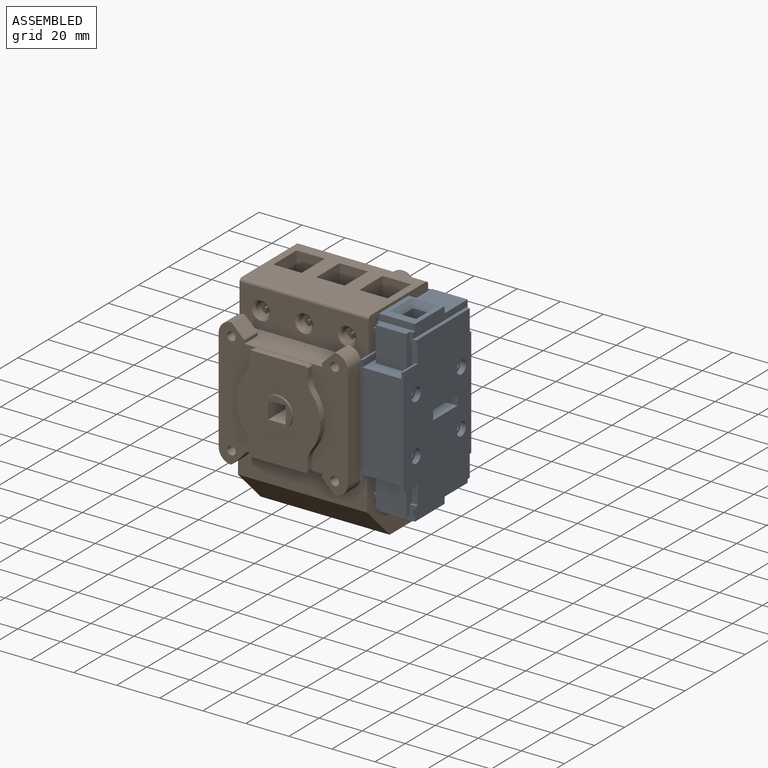
[diagram: assembled view]
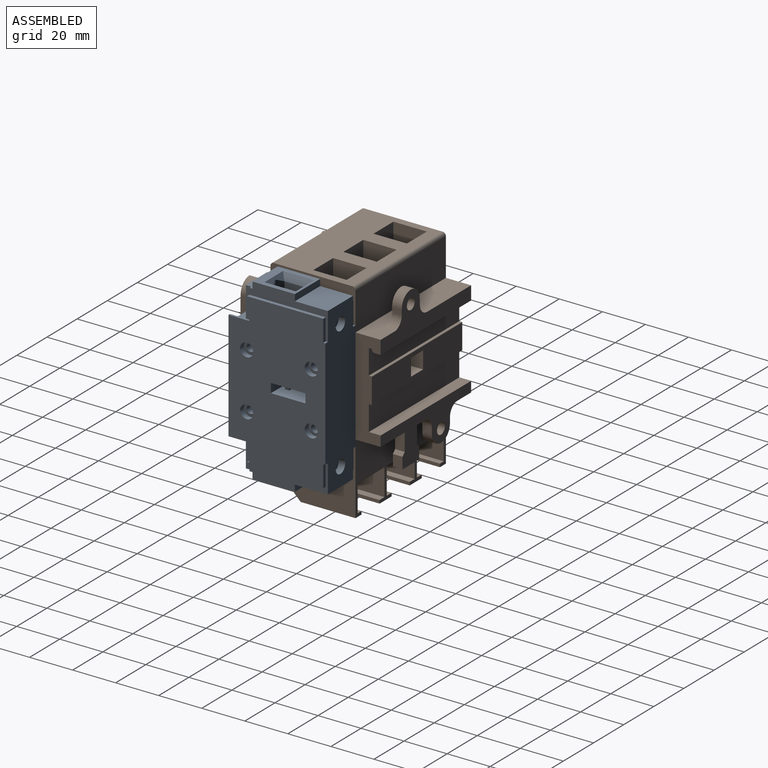
[diagram: assembled view, second angle]
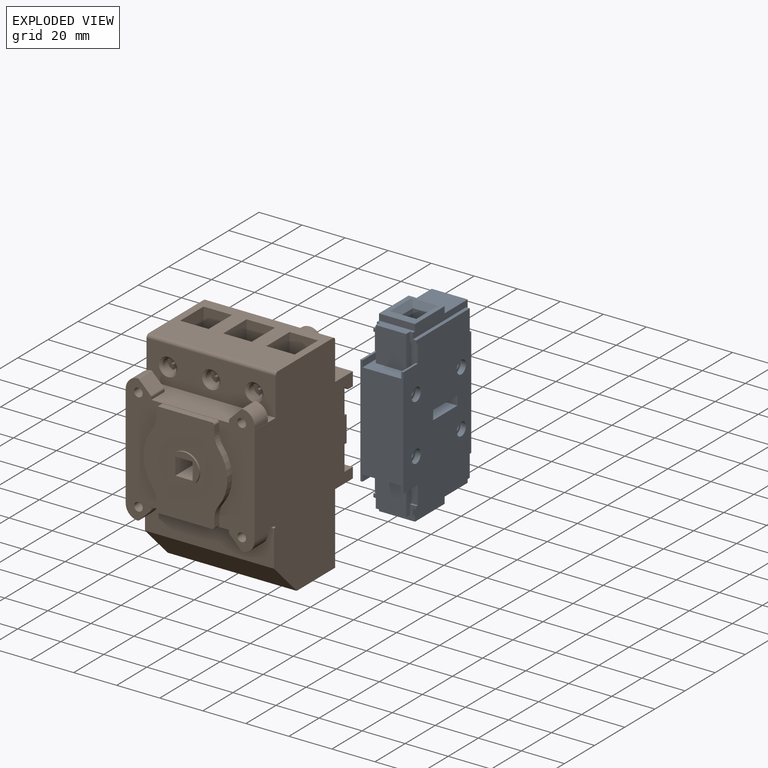
[diagram: exploded view]
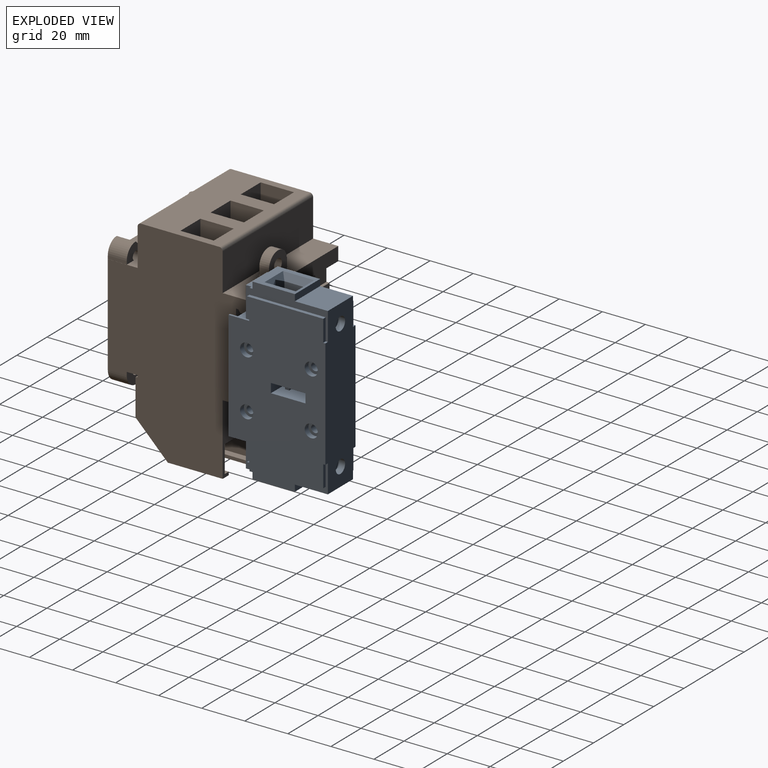
[diagram: exploded view, second angle]
ASSEMBLY  parts=2 mates=3
PART A: 132 faces, bbox 45x83x22.3 mm
  f0: cylinder r=1.5mm len=2.3mm, axis (0,0,-1), area 4.9mm2, adj f8,f129,f130,f131
  f1: cylinder r=1.5mm len=2.3mm, axis (0,0,-1), area 4.9mm2, adj f8,f129,f130,f131
  f2: plane 71.2x45mm, normal (0,0,-1), area 2807mm2, adj f3,f6,f13,f14,f20,f29,f30,f31
  f3: cylinder r=3.05mm len=6.1mm, axis (0,0,1), area 47.9mm2, adj f2,f4
  f4: plane 6.1x6.1mm, normal (0,0,-1), area 19mm2, adj f3,f7
  f5: plane 6.1x6.1mm, normal (0,0,-1), area 19mm2, adj f6,f9
  f6: cylinder r=3.05mm len=6.1mm, axis (0,0,1), area 47.9mm2, adj f2,f5
  f7: cylinder r=1.8mm len=17.5mm, axis (0,0,1), area 197.9mm2, adj f4,f8
  f8: plane 71.2x45mm, normal (0,0,1), area 2870.7mm2, adj f0,f1,f7,f9,f10,f15,f16,f18
  f9: cylinder r=1.8mm len=17.5mm, axis (0,0,1), area 197.9mm2, adj f5,f8
  f10: cylinder r=1.8mm len=17.5mm, axis (0,0,-1), area 197.9mm2, adj f8,f11
  f11: plane 6.1x6.1mm, normal (0,0,-1), area 19mm2, adj f10,f13
  f12: plane 6.1x6.1mm, normal (0,0,-1), area 19mm2, adj f14,f15
  f13: cylinder r=3.05mm len=6.1mm, axis (0,0,-1), area 47.9mm2, adj f2,f11
  f14: cylinder r=3.05mm len=6.1mm, axis (0,0,-1), area 47.9mm2, adj f2,f12
  f15: cylinder r=1.8mm len=17.5mm, axis (0,0,-1), area 197.9mm2, adj f8,f12
  f16: cylinder r=1.5mm len=3mm, axis (0,0,1), area 21.7mm2, adj f8,f17
  f17: plane 3x3mm, normal (0,0,1), area 7.1mm2, adj f16
  f18: plane 11.5x2.95mm, normal (-1,0,0), area 30.9mm2, adj f8,f19,f21,f22,f66,f67
  f19: plane 9.6x1mm, normal (0,-1,0), area 9.6mm2, adj f8,f18,f21,f33
  f20: plane 9.6x1mm, normal (0,-1,0), area 9.6mm2, adj f2,f31,f32,f33
  f21: plane 9.6x3mm, normal (0,0,-1), area 28.8mm2, adj f18,f19,f22,f33
  f22: plane 18x9.6mm, normal (0,-1,0), area 122mm2, adj f18,f21,f23,f24,f31,f32,f33,f66
  f23: plane 16x14.1mm, normal (-1,0,0), area 225.6mm2, adj f22,f24,f26,f66
  f24: plane 16x3.6mm, normal (0,0,-1), area 53.1mm2, adj f22,f23,f26,f29,f30,f31
  f25: plane 16.7x15.3mm, normal (0,-1,0), area 255.5mm2, adj f27,f28,f46,f61
  f26: plane 16.7x4mm, normal (0,-1,0), area 60mm2, adj f23,f24,f28,f29,f61,f62,f66,f69
  f27: plane 16.7x3mm, normal (1,0,0), area 50.1mm2, adj f25,f28,f61,f68
  f28: plane 36.4x16mm, normal (0,0,-1), area 174.8mm2, adj f25,f26,f27,f29,f46,f68,f69,f104
  f29: plane 4.5x2.95mm, normal (-1,0,0), area 8.5mm2, adj f2,f24,f26,f28,f30,f106
  f30: plane 2.95x1mm, normal (0,1,0), area 2.9mm2, adj f2,f24,f29,f31
  f31: plane 11.5x2.95mm, normal (-1,0,0), area 30.9mm2, adj f2,f20,f22,f24,f30,f32
  f32: plane 9.6x3mm, normal (0,0,1), area 28.8mm2, adj f20,f22,f31,f33
  f33: plane 51x20mm, normal (-1,0,0), area 912mm2, adj f2,f8,f19,f20,f21,f22,f32,f34
  f34: plane 9.6x1mm, normal (0,1,0), area 9.6mm2, adj f8,f33,f36,f96
  f35: plane 9.6x1mm, normal (0,1,0), area 9.6mm2, adj f2,f33,f38,f39
  f36: plane 9.6x3mm, normal (0,0,-1), area 28.8mm2, adj f33,f34,f37,f96
  f37: plane 18x9.6mm, normal (0,1,0), area 122mm2, adj f33,f36,f38,f39,f96,f97,f98,f99
  f38: plane 9.6x3mm, normal (0,0,1), area 28.8mm2, adj f33,f35,f37,f39
  f39: plane 11.5x2.95mm, normal (-1,0,0), area 30.9mm2, adj f2,f35,f37,f38,f40,f99
  f40: plane 2.95x1mm, normal (0,-1,0), area 2.9mm2, adj f2,f39,f41,f99
  f41: plane 4.5x2.95mm, normal (-1,0,0), area 8.5mm2, adj f2,f40,f42,f43,f92,f99
  f42: plane 35.4x1.65mm, normal (0,1,0), area 58.4mm2, adj f2,f41,f43,f44
  f43: plane 36.4x16mm, normal (0,0,-1), area 174.8mm2, adj f41,f42,f44,f45,f46,f89,f90,f91
  f44: plane 10.1x1.65mm, normal (1,0,0), area 16.7mm2, adj f2,f42,f43,f45
  f45: plane 1.65x1mm, normal (0,1,0), area 1.7mm2, adj f2,f43,f44,f46
  f46: plane 77x20mm, normal (1,0,0), area 1393.8mm2, adj f2,f8,f25,f28,f43,f45,f47,f61
  f47: cylinder r=3.1mm len=6.2mm, axis (-1,0,0), area 63.6mm2, adj f46,f48,f49,f50,f51,f52,f56,f57
  f48: plane 5.99x2.3mm, normal (1,0,0), area 8.3mm2, adj f47,f50,f57,f58,f59,f60
  f49: plane 5.99x2.3mm, normal (1,0,0), area 8.3mm2, adj f47,f52,f53,f54,f55,f56
  f50: plane 2.2x1mm, normal (0,0,-1), area 2.2mm2, adj f47,f48,f51,f60
  f51: plane 6.2x4mm, normal (1,0,0), area 13.6mm2, adj f47,f50,f52,f53,f54,f55,f56,f57
  f52: plane 2.2x1mm, normal (0,0,1), area 2.2mm2, adj f47,f49,f51,f53
  f53: plane 1.2x1mm, normal (0,-1,0), area 1.2mm2, adj f49,f51,f52,f54
  f54: plane 1.6x1mm, normal (0,0,1), area 1.6mm2, adj f49,f51,f53,f55
  f55: plane 1.2x1mm, normal (0,1,0), area 1.2mm2, adj f49,f51,f54,f56
  f56: plane 2.2x1mm, normal (0,0,1), area 2.2mm2, adj f47,f49,f51,f55
  f57: plane 2.2x1mm, normal (0,0,-1), area 2.2mm2, adj f47,f48,f51,f58
  f58: plane 1.2x1mm, normal (0,1,0), area 1.2mm2, adj f48,f51,f57,f59
  f59: plane 1.6x1mm, normal (0,0,-1), area 1.6mm2, adj f48,f51,f58,f60
  f60: plane 1.2x1mm, normal (0,-1,0), area 1.2mm2, adj f48,f50,f51,f59
  f61: plane 36.4x16mm, normal (0,0,1), area 174.8mm2, adj f25,f26,f27,f46,f62,f63,f64,f65
  f62: plane 4.5x2.95mm, normal (-1,0,0), area 8.5mm2, adj f8,f26,f61,f63,f66,f67
  f63: plane 35.4x1.65mm, normal (0,-1,0), area 58.4mm2, adj f8,f61,f62,f64
  f64: plane 10.1x1.65mm, normal (1,0,0), area 16.7mm2, adj f8,f61,f63,f65
  f65: plane 1.65x1mm, normal (0,-1,0), area 1.7mm2, adj f8,f46,f61,f64
  f66: plane 16x3.6mm, normal (0,0,1), area 53.1mm2, adj f18,f22,f23,f26,f62,f67
  f67: plane 2.95x1mm, normal (0,1,0), area 2.9mm2, adj f8,f18,f62,f66
  f68: plane 19.7x16.7mm, normal (0,-1,0), area 150.6mm2, adj f27,f28,f61,f69,f70,f76,f77,f78
  f69: plane 16.7x3mm, normal (-1,0,0), area 50.1mm2, adj f26,f28,f61,f68
  f70: plane 12.3x3mm, normal (-0.83,-0.55,0), area 37.1mm2, adj f68,f71,f76,f78
  f71: plane 16.6x8.3mm, normal (-1,0,0), area 137.8mm2, adj f70,f72,f75,f79
  f72: plane 16.6x10.5mm, normal (0,0,1), area 174.3mm2, adj f71,f73,f78,f79
  f73: plane 80.75x4.15mm, normal (0.96,0,0.29), area 341.9mm2, adj f72,f74,f77,f80,f82,f84
  f74: plane 80.75x4.15mm, normal (0.96,0,-0.29), area 341.9mm2, adj f73,f75,f77,f80,f84,f86
  f75: plane 16.6x10.5mm, normal (0,0,-1), area 174.3mm2, adj f71,f74,f76,f79
  f76: plane 14.5x3mm, normal (0,-0.55,-0.83), area 45.1mm2, adj f68,f70,f75,f77
  f77: plane 12.3x3mm, normal (0.83,-0.55,0), area 27.8mm2, adj f68,f73,f74,f76,f78
  f78: plane 14.5x3mm, normal (0,-0.55,0.83), area 45.1mm2, adj f68,f70,f72,f77
  f79: plane 10.5x8.3mm, normal (0,-1,0), area 87.1mm2, adj f71,f72,f75,f80
  f80: plane 43.8x8.3mm, normal (-1,0,0), area 363.5mm2, adj f73,f74,f79,f81
  f81: plane 10.5x8.3mm, normal (0,1,0), area 87.1mm2, adj f80,f82,f86,f87
  f82: plane 16.6x10.5mm, normal (0,0,1), area 174.3mm2, adj f73,f81,f83,f87
  f83: plane 14.5x3mm, normal (0,0.55,0.83), area 45.1mm2, adj f82,f84,f88,f89
  f84: plane 12.3x3mm, normal (0.83,0.55,0), area 27.8mm2, adj f73,f74,f83,f85,f89
  f85: plane 14.5x3mm, normal (0,0.55,-0.83), area 45.1mm2, adj f84,f86,f88,f89
  f86: plane 16.6x10.5mm, normal (0,0,-1), area 174.3mm2, adj f74,f81,f85,f87
  f87: plane 16.6x8.3mm, normal (-1,0,0), area 137.8mm2, adj f81,f82,f86,f88
  f88: plane 12.3x3mm, normal (-0.83,0.55,0), area 37.1mm2, adj f83,f85,f87,f89
  f89: plane 19.7x16.7mm, normal (0,1,0), area 150.6mm2, adj f43,f83,f84,f85,f88,f90,f93,f103
  f90: plane 16.7x3mm, normal (1,0,0), area 50.1mm2, adj f43,f89,f91,f93
  f91: plane 16.7x15.3mm, normal (0,1,0), area 255.5mm2, adj f43,f46,f90,f93
  f92: plane 16.7x4mm, normal (0,1,0), area 60mm2, adj f41,f43,f93,f94,f97,f98,f99,f103
  f93: plane 36.4x16mm, normal (0,0,1), area 174.8mm2, adj f46,f89,f90,f91,f92,f94,f100,f101
  f94: plane 4.5x2.95mm, normal (-1,0,0), area 8.5mm2, adj f8,f92,f93,f95,f97,f100
  f95: plane 2.95x1mm, normal (0,-1,0), area 2.9mm2, adj f8,f94,f96,f97
  f96: plane 11.5x2.95mm, normal (-1,0,0), area 30.9mm2, adj f8,f34,f36,f37,f95,f97
  f97: plane 16x3.6mm, normal (0,0,1), area 53.1mm2, adj f37,f92,f94,f95,f96,f98
  f98: plane 16x14.1mm, normal (-1,0,0), area 225.6mm2, adj f37,f92,f97,f99
  f99: plane 16x3.6mm, normal (0,0,-1), area 53.1mm2, adj f37,f39,f40,f41,f92,f98
  f100: plane 35.4x1.65mm, normal (0,1,0), area 58.4mm2, adj f8,f93,f94,f101
  f101: plane 10.1x1.65mm, normal (1,0,0), area 16.7mm2, adj f8,f93,f100,f102
  f102: plane 1.65x1mm, normal (0,1,0), area 1.7mm2, adj f8,f46,f93,f101
  f103: plane 16.7x3mm, normal (-1,0,0), area 50.1mm2, adj f43,f89,f92,f93
  f104: plane 1.65x1mm, normal (0,-1,0), area 1.7mm2, adj f2,f28,f46,f105
  f105: plane 10.1x1.65mm, normal (1,0,0), area 16.7mm2, adj f2,f28,f104,f106
  f106: plane 35.4x1.65mm, normal (0,-1,0), area 58.4mm2, adj f2,f28,f29,f105
  f107: cylinder r=3.1mm len=6.2mm, axis (1,0,0), area 63.6mm2, adj f46,f108,f109,f110,f114,f115,f119,f120
  f108: plane 5.99x2.3mm, normal (1,0,0), area 8.3mm2, adj f107,f110,f111,f112,f113,f114
  f109: plane 5.99x2.3mm, normal (1,0,0), area 8.3mm2, adj f107,f115,f116,f117,f118,f119
  f110: plane 2.2x1mm, normal (0,0,-1), area 2.2mm2, adj f107,f108,f111,f120
  f111: plane 1.2x1mm, normal (0,1,0), area 1.2mm2, adj f108,f110,f112,f120
  f112: plane 1.6x1mm, normal (0,0,-1), area 1.6mm2, adj f108,f111,f113,f120
  f113: plane 1.2x1mm, normal (0,-1,0), area 1.2mm2, adj f108,f112,f114,f120
  f114: plane 2.2x1mm, normal (0,0,-1), area 2.2mm2, adj f107,f108,f113,f120
  f115: plane 2.2x1mm, normal (0,0,1), area 2.2mm2, adj f107,f109,f116,f120
  f116: plane 1.2x1mm, normal (0,-1,0), area 1.2mm2, adj f109,f115,f117,f120
  f117: plane 1.6x1mm, normal (0,0,1), area 1.6mm2, adj f109,f116,f118,f120
  f118: plane 1.2x1mm, normal (0,1,0), area 1.2mm2, adj f109,f117,f119,f120
  f119: plane 2.2x1mm, normal (0,0,1), area 2.2mm2, adj f107,f109,f118,f120
  f120: plane 6.2x4mm, normal (1,0,0), area 13.6mm2, adj f107,f110,f111,f112,f113,f114,f115,f116
  f121: plane 20x4.3mm, normal (-1,0,0), area 86mm2, adj f2,f8,f122,f124
  f122: plane 20x16.1mm, normal (0,-1,0), area 306.2mm2, adj f2,f8,f121,f123,f125,f126,f127,f128
  f123: plane 20x4.3mm, normal (1,0,0), area 86mm2, adj f2,f8,f122,f124
  f124: plane 20x16.1mm, normal (0,1,0), area 306.2mm2, adj f2,f8,f121,f123,f125,f126,f127,f128
  f125: plane 4.3x2mm, normal (0,0,1), area 8.6mm2, adj f122,f124,f126,f128
  f126: plane 7.9x4.3mm, normal (-1,0,0), area 34mm2, adj f122,f124,f125,f127
  f127: plane 4.3x2mm, normal (0,0,-1), area 8.6mm2, adj f122,f124,f126,f128
  f128: plane 7.9x4.3mm, normal (1,0,0), area 34mm2, adj f122,f124,f125,f127
  f129: plane 2.3x2.28mm, normal (0,-1,0), area 5.2mm2, adj f0,f1,f8,f130
  f130: plane 3x1.95mm, normal (0,0,1), area 5.4mm2, adj f0,f1,f129,f131
  f131: plane 2.3x2.28mm, normal (0,1,0), area 5.2mm2, adj f0,f1,f8,f130
PART B: 228 faces, bbox 97x69.2x60 mm
  f0: plane 60x11.6mm, normal (0,-1,0), area 632mm2, adj f157,f158,f188,f203,f224,f225,f226,f227
  f1: cylinder r=0.4mm len=2.5mm, axis (0,1,0), area 1.6mm2, adj f2,f33,f34,f35
  f2: plane 2.5x0.54mm, normal (1,0,0), area 1.3mm2, adj f1,f3,f33,f35
  f3: cylinder r=35mm len=2.5mm, axis (0,1,0), area 3.5mm2, adj f2,f4,f33,f35
  f4: plane 2.5x0.54mm, normal (-1,0,0), area 1.3mm2, adj f3,f5,f33,f35
  f5: cylinder r=0.4mm len=2.5mm, axis (0,1,0), area 1.6mm2, adj f4,f32,f33,f35
  f6: cylinder r=0.4mm len=2.5mm, axis (0,1,0), area 1.6mm2, adj f7,f35,f36,f37
  f7: plane 2.5x0.54mm, normal (1,0,0), area 1.3mm2, adj f6,f8,f35,f37
  f8: cylinder r=35mm len=2.5mm, axis (0,1,0), area 3.5mm2, adj f7,f9,f35,f37
  f9: plane 2.5x0.54mm, normal (-1,0,0), area 1.3mm2, adj f8,f10,f35,f37
  f10: cylinder r=0.4mm len=2.5mm, axis (0,1,0), area 1.6mm2, adj f9,f31,f35,f37
  f11: cylinder r=0.4mm len=2.5mm, axis (0,1,0), area 1.6mm2, adj f12,f40,f41,f42
  f12: plane 2.5x0.54mm, normal (1,0,0), area 1.3mm2, adj f11,f13,f40,f42
  f13: cylinder r=35mm len=2.5mm, axis (0,-1,0), area 3.5mm2, adj f12,f14,f40,f42
  f14: plane 2.5x0.54mm, normal (-1,0,0), area 1.3mm2, adj f13,f15,f40,f42
  f15: cylinder r=0.4mm len=2.5mm, axis (0,1,0), area 1.6mm2, adj f14,f39,f40,f42
  f16: cylinder r=0.4mm len=2.5mm, axis (0,1,0), area 1.6mm2, adj f17,f42,f43,f44
  f17: plane 2.5x0.54mm, normal (1,0,0), area 1.3mm2, adj f16,f18,f42,f44
  f18: cylinder r=35mm len=2.5mm, axis (0,-1,0), area 3.5mm2, adj f17,f19,f42,f44
  f19: plane 2.5x0.54mm, normal (-1,0,0), area 1.3mm2, adj f18,f20,f42,f44
  f20: cylinder r=0.4mm len=2.5mm, axis (0,1,0), area 1.6mm2, adj f19,f38,f42,f44
  f21: cylinder r=0.4mm len=2.5mm, axis (0,1,0), area 1.6mm2, adj f22,f47,f48,f49
  f22: plane 2.5x0.54mm, normal (1,0,0), area 1.3mm2, adj f21,f23,f47,f49
  f23: cylinder r=35mm len=2.5mm, axis (0,-1,0), area 3.5mm2, adj f22,f24,f47,f49
  f24: plane 2.5x0.54mm, normal (-1,0,0), area 1.3mm2, adj f23,f25,f47,f49
  f25: cylinder r=0.4mm len=2.5mm, axis (0,1,0), area 1.6mm2, adj f24,f46,f47,f49
  f26: cylinder r=0.4mm len=2.5mm, axis (0,1,0), area 1.6mm2, adj f27,f49,f50,f51
  f27: plane 2.5x0.54mm, normal (1,0,0), area 1.3mm2, adj f26,f28,f49,f51
  f28: cylinder r=35mm len=2.5mm, axis (0,-1,0), area 3.5mm2, adj f27,f29,f49,f51
  f29: plane 2.5x0.54mm, normal (-1,0,0), area 1.3mm2, adj f28,f30,f49,f51
  f30: cylinder r=0.4mm len=2.5mm, axis (0,1,0), area 1.6mm2, adj f29,f45,f49,f51
  f31: plane 2.5x2.06mm, normal (0,0,-1), area 5.2mm2, adj f10,f35,f37,f55
  f32: plane 2.5x2.06mm, normal (0,0,1), area 5.2mm2, adj f5,f33,f35,f55
  f33: plane 6.32x2.5mm, normal (0,1,0), area 10.4mm2, adj f1,f2,f3,f4,f5,f32,f34,f55
  f34: plane 2.5x2.06mm, normal (0,0,1), area 5.2mm2, adj f1,f33,f35,f55
  f35: plane 6.5x3.39mm, normal (0,1,0), area 12.4mm2, adj f1,f2,f3,f4,f5,f6,f7,f8
  f36: plane 2.5x2.06mm, normal (0,0,-1), area 5.2mm2, adj f6,f35,f37,f55
  f37: plane 6.32x2.5mm, normal (0,1,0), area 10.4mm2, adj f6,f7,f8,f9,f10,f31,f36,f55
  f38: plane 2.5x2.06mm, normal (0,0,-1), area 5.2mm2, adj f20,f42,f44,f56
  f39: plane 2.5x2.06mm, normal (0,0,1), area 5.2mm2, adj f15,f40,f42,f56
  f40: plane 6.32x2.5mm, normal (0,1,0), area 10.4mm2, adj f11,f12,f13,f14,f15,f39,f41,f56
  f41: plane 2.5x2.06mm, normal (0,0,1), area 5.2mm2, adj f11,f40,f42,f56
  f42: plane 6.5x3.39mm, normal (0,1,0), area 12.4mm2, adj f11,f12,f13,f14,f15,f16,f17,f18
  f43: plane 2.5x2.06mm, normal (0,0,-1), area 5.2mm2, adj f16,f42,f44,f56
  f44: plane 6.32x2.5mm, normal (0,1,0), area 10.4mm2, adj f16,f17,f18,f19,f20,f38,f43,f56
  f45: plane 2.5x2.06mm, normal (0,0,-1), area 5.2mm2, adj f30,f49,f51,f57
  f46: plane 2.5x2.06mm, normal (0,0,1), area 5.2mm2, adj f25,f47,f49,f57
  f47: plane 6.32x2.5mm, normal (0,1,0), area 10.4mm2, adj f21,f22,f23,f24,f25,f46,f48,f57
  f48: plane 2.5x2.06mm, normal (0,0,1), area 5.2mm2, adj f21,f47,f49,f57
  f49: plane 6.5x3.39mm, normal (0,1,0), area 12.4mm2, adj f21,f22,f23,f24,f25,f26,f27,f28
  f50: plane 2.5x2.06mm, normal (0,0,-1), area 5.2mm2, adj f26,f49,f51,f57
  f51: plane 6.32x2.5mm, normal (0,1,0), area 10.4mm2, adj f26,f27,f28,f29,f30,f45,f50,f57
  f52: plane 15.5x13.2mm, normal (-1,0,0), area 204.6mm2, adj f58,f59,f60,f61
  f53: plane 15.5x13.2mm, normal (-1,0,0), area 204.6mm2, adj f63,f64,f65,f66
  f54: plane 15.5x13.2mm, normal (-1,0,0), area 204.6mm2, adj f68,f69,f70,f71
  f55: cylinder r=3.25mm len=6.5mm, axis (0,1,0), area 79mm2, adj f31,f32,f33,f34,f35,f36,f37,f78
  f56: cylinder r=3.25mm len=6.5mm, axis (0,1,0), area 79mm2, adj f38,f39,f40,f41,f42,f43,f44,f79
  f57: cylinder r=3.25mm len=6.5mm, axis (0,1,0), area 79mm2, adj f45,f46,f47,f48,f49,f50,f51,f80
  f58: plane 15.5x6mm, normal (0,0,-1), area 93mm2, adj f52,f59,f61,f86
  f59: plane 13.2x6mm, normal (0,-1,0), area 79.2mm2, adj f52,f58,f60,f86
  f60: plane 15.5x6mm, normal (0,0,1), area 93mm2, adj f52,f59,f61,f86
  f61: plane 13.2x6mm, normal (0,1,0), area 79.2mm2, adj f52,f58,f60,f86
  f62: plane 17.85x12.5mm, normal (0,-1,0), area 223.1mm2, adj f85,f86,f87,f88
  f63: plane 13.2x6mm, normal (0,-1,0), area 79.2mm2, adj f53,f64,f66,f92
  f64: plane 15.5x6mm, normal (0,0,1), area 93mm2, adj f53,f63,f65,f92
  f65: plane 13.2x6mm, normal (0,1,0), area 79.2mm2, adj f53,f64,f66,f92
  f66: plane 15.5x6mm, normal (0,0,-1), area 93mm2, adj f53,f63,f65,f92
  f67: plane 17.85x12.5mm, normal (0,-1,0), area 223.1mm2, adj f91,f92,f93,f94
  f68: plane 15.5x6mm, normal (0,0,1), area 93mm2, adj f54,f69,f71,f98
  f69: plane 13.2x6mm, normal (0,1,0), area 79.2mm2, adj f54,f68,f70,f98
  f70: plane 15.5x6mm, normal (0,0,-1), area 93mm2, adj f54,f69,f71,f98
  f71: plane 13.2x6mm, normal (0,-1,0), area 79.2mm2, adj f54,f68,f70,f98
  f72: plane 18.5x12.5mm, normal (0,-1,0), area 231.2mm2, adj f97,f98,f99,f100
  f73: plane 13.93x11.5mm, normal (0,1,0), area 103.1mm2, adj f102,f104,f105,f106,f107,f108,f109
  f74: plane 13.93x11.5mm, normal (0,1,0), area 103.1mm2, adj f117,f118,f119,f120,f121,f122,f123
  f75: plane 15.5x13.2mm, normal (1,0,0), area 204.6mm2, adj f124,f125,f126,f127
  f76: plane 15.5x13.2mm, normal (1,0,0), area 204.6mm2, adj f128,f129,f130,f131
  f77: plane 15.5x13.2mm, normal (1,0,0), area 204.6mm2, adj f132,f133,f134,f135
  f78: cone r=3.75mm half-angle=45deg, axis (0,1,0), area 33.3mm2, adj f55,f145
  f79: cone r=3.75mm half-angle=45deg, axis (0,1,0), area 33.3mm2, adj f56,f145
  f80: cone r=3.75mm half-angle=45deg, axis (0,1,0), area 33.3mm2, adj f57,f145
  f81: cylinder r=6mm len=12mm, axis (-1,0,0), area 28.3mm2, adj f84,f88,f89,f150
  f82: cylinder r=6mm len=12mm, axis (-1,0,0), area 28.3mm2, adj f96,f100,f101,f150
  f83: cylinder r=6mm len=12mm, axis (-1,0,0), area 28.3mm2, adj f90,f94,f95,f150
  f84: plane 17x1.5mm, normal (0,0,1), area 25.5mm2, adj f81,f88,f150,f151
  f85: plane 25x12.5mm, normal (0,0,1), area 312.5mm2, adj f62,f86,f88,f151
  f86: plane 25x17.85mm, normal (-1,0,0), area 241.7mm2, adj f58,f59,f60,f61,f62,f85,f87,f151
  f87: plane 25x12.5mm, normal (0,0,-1), area 312.5mm2, adj f62,f86,f88,f151
  f88: plane 25x17.85mm, normal (1,0,0), area 185.7mm2, adj f62,f81,f84,f85,f87,f89,f151
  f89: plane 17x1.5mm, normal (0,0,-1), area 25.5mm2, adj f81,f88,f150,f151
  f90: plane 17x1.5mm, normal (0,0,1), area 25.5mm2, adj f83,f94,f150,f151
  f91: plane 25x12.5mm, normal (0,0,1), area 312.5mm2, adj f67,f92,f94,f151
  f92: plane 25x17.85mm, normal (-1,0,0), area 241.7mm2, adj f63,f64,f65,f66,f67,f91,f93,f151
  f93: plane 25x12.5mm, normal (0,0,-1), area 312.5mm2, adj f67,f92,f94,f151
  f94: plane 25x17.85mm, normal (1,0,0), area 185.7mm2, adj f67,f83,f90,f91,f93,f95,f151
  f95: plane 17x1.5mm, normal (0,0,-1), area 25.5mm2, adj f83,f94,f150,f151
  f96: plane 17x1.5mm, normal (0,0,1), area 25.5mm2, adj f82,f100,f150,f151
  f97: plane 25x12.5mm, normal (0,0,1), area 312.5mm2, adj f72,f98,f100,f151
  f98: plane 25x18.5mm, normal (-1,0,0), area 257.9mm2, adj f68,f69,f70,f71,f72,f97,f99,f151
  f99: plane 25x12.5mm, normal (0,0,-1), area 312.5mm2, adj f72,f98,f100,f151
  f100: plane 25x18.5mm, normal (1,0,0), area 202mm2, adj f72,f82,f96,f97,f99,f101,f151
  f101: plane 17x1.5mm, normal (0,0,-1), area 25.5mm2, adj f82,f100,f150,f151
  f102: cylinder r=2mm len=20.59mm, axis (0,0,-1), area 54.2mm2, adj f73,f105,f109,f152
  f103: plane 14.95x11mm, normal (0,1,0), area 137.8mm2, adj f110,f111,f112,f113,f114,f115,f116,f152
  f104: cylinder r=2.6mm len=5.2mm, axis (0,-1,0), area 73.5mm2, adj f73,f153
  f105: cylinder r=5mm len=6.5mm, axis (0,-1,0), area 34.7mm2, adj f73,f102,f106,f152,f153
  f106: plane 4.5x2.55mm, normal (0,0,-1), area 11.5mm2, adj f73,f105,f107,f153
  f107: cylinder r=6mm len=12mm, axis (0,-1,0), area 84.8mm2, adj f73,f106,f108,f153
  f108: plane 4.5x2.55mm, normal (0,0,1), area 11.5mm2, adj f73,f107,f109,f153
  f109: cylinder r=5mm len=6.5mm, axis (0,-1,0), area 34.7mm2, adj f73,f102,f108,f152,f153
  f110: plane 8.15x4.5mm, normal (0,0,-1), area 36.7mm2, adj f103,f111,f152,f153
  f111: plane 4.5x1.5mm, normal (0.71,0,-0.71), area 9.5mm2, adj f103,f110,f112,f153
  f112: plane 5.3x4.5mm, normal (0,0,-1), area 23.8mm2, adj f103,f111,f113,f153
  f113: plane 11x4.5mm, normal (-1,0,0), area 49.5mm2, adj f103,f112,f114,f153
  f114: plane 5.3x4.5mm, normal (0,0,1), area 23.8mm2, adj f103,f113,f115,f153
  f115: plane 4.5x1.5mm, normal (0.71,0,0.71), area 9.5mm2, adj f103,f114,f116,f153
  f116: plane 8.15x4.5mm, normal (0,0,1), area 36.7mm2, adj f103,f115,f152,f153
  f117: cylinder r=2.6mm len=5.2mm, axis (0,-1,0), area 73.5mm2, adj f74,f165
  f118: plane 4.5x2.55mm, normal (0,0,1), area 11.5mm2, adj f74,f119,f122,f165
  f119: cylinder r=6mm len=12mm, axis (0,-1,0), area 84.8mm2, adj f74,f118,f120,f165
  f120: plane 4.5x2.55mm, normal (0,0,-1), area 11.5mm2, adj f74,f119,f123,f165
  f121: cylinder r=2mm len=20.59mm, axis (0,0,1), area 54.2mm2, adj f74,f122,f123,f166
  f122: cylinder r=5mm len=6.5mm, axis (0,-1,0), area 34.7mm2, adj f74,f118,f121,f165,f166
  f123: cylinder r=5mm len=6.5mm, axis (0,-1,0), area 34.7mm2, adj f74,f120,f121,f165,f166
  f124: plane 15.5x9mm, normal (0,0,-1), area 139.5mm2, adj f75,f125,f127,f169
  f125: plane 13.2x9mm, normal (0,1,0), area 118.8mm2, adj f75,f124,f126,f169
  f126: plane 15.5x9mm, normal (0,0,1), area 139.5mm2, adj f75,f125,f127,f169
  f127: plane 13.2x9mm, normal (0,-1,0), area 118.8mm2, adj f75,f124,f126,f169
  f128: plane 13.2x9mm, normal (0,-1,0), area 118.8mm2, adj f76,f129,f131,f169
  f129: plane 15.5x9mm, normal (0,0,-1), area 139.5mm2, adj f76,f128,f130,f169
  f130: plane 13.2x9mm, normal (0,1,0), area 118.8mm2, adj f76,f129,f131,f169
  f131: plane 15.5x9mm, normal (0,0,1), area 139.5mm2, adj f76,f128,f130,f169
  f132: plane 13.2x9mm, normal (0,-1,0), area 118.8mm2, adj f77,f133,f135,f169
  f133: plane 15.5x9mm, normal (0,0,-1), area 139.5mm2, adj f77,f132,f134,f169
  f134: plane 13.2x9mm, normal (0,1,0), area 118.8mm2, adj f77,f133,f135,f169
  f135: plane 15.5x9mm, normal (0,0,1), area 139.5mm2, adj f77,f132,f134,f169
  f136: plane 2.65x0.5mm, normal (0,1,0), area 0.9mm2, adj f172,f187
  f137: plane 11.9x7.38mm, normal (0,-1,0), area 51.2mm2, adj f172,f174,f175,f176,f177,f178,f179,f187
  f138: plane 11.92x7.48mm, normal (0,-1,0), area 52.1mm2, adj f170,f180,f181,f182,f183,f184,f185,f186
  f139: plane 2.65x0.5mm, normal (0,1,0), area 0.9mm2, adj f170,f187
  f140: plane 2.65x0.5mm, normal (0,1,0), area 0.9mm2, adj f173,f202
  f141: plane 11.9x7.38mm, normal (0,-1,0), area 51.2mm2, adj f173,f196,f197,f198,f199,f200,f201,f202
  f142: plane 11.92x7.48mm, normal (0,-1,0), area 52.1mm2, adj f171,f189,f190,f191,f192,f193,f194,f195
  f143: plane 2.65x0.5mm, normal (0,1,0), area 0.9mm2, adj f171,f202
  f144: cylinder r=1.5mm len=60mm, axis (0,0,-1), area 141.4mm2, adj f145,f169,f188,f203
  f145: plane 60x17.5mm, normal (0,1,0), area 879.8mm2, adj f78,f79,f80,f144,f187,f188,f203
  f146: plane 60x0.85mm, normal (0,1,0), area 51.1mm2, adj f147,f188,f202,f203
  f147: plane 60x1mm, normal (0.97,0.26,0), area 62.1mm2, adj f146,f148,f188,f203
  f148: plane 60x16.88mm, normal (0,1,0), area 1012.8mm2, adj f147,f149,f188,f203
  f149: plane 60x15mm, normal (-0.71,0.71,0), area 1272.8mm2, adj f148,f150,f188,f203
  f150: plane 60x25.5mm, normal (-1,0,0), area 748.4mm2, adj f81,f82,f83,f84,f89,f90,f95,f96
  f151: plane 60x33mm, normal (0,-1,0), area 1248.5mm2, adj f84,f85,f86,f87,f88,f89,f90,f91
  f152: plane 60x11.7mm, normal (-1,0,0), area 532.2mm2, adj f102,f103,f105,f109,f110,f116,f151,f153
  f153: plane 60x19.8mm, normal (0,-1,0), area 564.3mm2, adj f104,f105,f106,f107,f108,f109,f110,f111
  f154: plane 60x5.5mm, normal (1,0,0), area 330mm2, adj f153,f155,f188,f203
  f155: plane 60x11.65mm, normal (0,-1,0), area 699mm2, adj f154,f156,f188,f203
  f156: plane 60x1.2mm, normal (-1,0,0), area 72mm2, adj f155,f157,f188,f203
  f157: cylinder r=0.2mm len=60mm, axis (0,0,1), area 18.8mm2, adj f0,f156,f188,f203
  f158: cylinder r=0.2mm len=60mm, axis (0,0,1), area 18.8mm2, adj f0,f159,f188,f203
  f159: plane 60x1.2mm, normal (1,0,0), area 72mm2, adj f158,f160,f188,f203
  f160: plane 60x11.65mm, normal (0,-1,0), area 699mm2, adj f159,f161,f188,f203
  f161: plane 60x1.1mm, normal (-1,0,0), area 66mm2, adj f160,f162,f188,f203
  f162: plane 60x1mm, normal (-0.5,0.87,0), area 69.3mm2, adj f161,f163,f188,f203
  f163: cylinder r=1mm len=60mm, axis (0,0,1), area 62.8mm2, adj f162,f164,f188,f203
  f164: plane 60x2.96mm, normal (-1,0,0), area 177.4mm2, adj f163,f165,f188,f203
  f165: plane 60x19.85mm, normal (0,-1,0), area 516.6mm2, adj f117,f118,f119,f120,f122,f123,f164,f166
  f166: plane 60x11.7mm, normal (1,0,0), area 568.2mm2, adj f121,f122,f123,f165,f167,f188,f203
  f167: plane 60x17.5mm, normal (0,-1,0), area 1050mm2, adj f166,f168,f188,f203
  f168: cylinder r=1.5mm len=60mm, axis (0,0,-1), area 141.4mm2, adj f167,f169,f188,f203
  f169: plane 60x36.5mm, normal (1,0,0), area 1576.2mm2, adj f124,f125,f126,f127,f128,f129,f130,f131
  f170: cylinder r=2mm len=8.8mm, axis (0,1,0), area 110.6mm2, adj f138,f139,f204
  f171: cylinder r=2mm len=8.8mm, axis (0,1,0), area 110.6mm2, adj f142,f143,f204
  f172: cylinder r=2mm len=8.8mm, axis (0,1,0), area 110.6mm2, adj f136,f137,f204
  f173: cylinder r=2mm len=8.8mm, axis (0,1,0), area 110.6mm2, adj f140,f141,f204
  f174: plane 8.8x1.5mm, normal (0,0,-1), area 13.2mm2, adj f137,f175,f187,f204
  f175: cylinder r=5.9mm len=8.8mm, axis (0,1,0), area 77.4mm2, adj f137,f174,f176,f204
  f176: cylinder r=1mm len=8.8mm, axis (0,1,0), area 7.5mm2, adj f137,f175,f177,f204
  f177: plane 8.8x5.39mm, normal (0.71,0,0.7), area 66.6mm2, adj f137,f176,f178,f204
  f178: cylinder r=1mm len=8.8mm, axis (0,1,0), area 7mm2, adj f137,f177,f179,f204
  f179: plane 8.8x1.08mm, normal (0,0,1), area 9.5mm2, adj f137,f178,f187,f204
  f180: plane 8.8x1.24mm, normal (0,0,-1), area 10.9mm2, adj f138,f181,f187,f204
  f181: plane 8.8x0.03mm, normal (0.71,0,-0.71), area 0.4mm2, adj f138,f180,f182,f204
  f182: cylinder r=1mm len=8.8mm, axis (0,1,0), area 5.3mm2, adj f138,f181,f183,f204
  f183: plane 8.8x5.39mm, normal (0.7,0,-0.71), area 66.6mm2, adj f138,f182,f184,f204
  f184: cylinder r=1mm len=8.8mm, axis (0,1,0), area 7.7mm2, adj f138,f183,f185,f204
  f185: cylinder r=6mm len=8.8mm, axis (0,1,0), area 78.7mm2, adj f138,f184,f186,f204
  f186: plane 8.8x1.5mm, normal (0,0,1), area 13.2mm2, adj f138,f185,f187,f204
  f187: plane 60x13.9mm, normal (1,0,0), area 624.4mm2, adj f136,f137,f138,f139,f145,f174,f179,f180
  f188: plane 97x65.1mm, normal (0,0,1), area 4730.6mm2, adj f0,f144,f145,f146,f147,f148,f149,f150
  f189: plane 8.8x1.5mm, normal (0,0,1), area 13.2mm2, adj f142,f190,f202,f204
  f190: cylinder r=6mm len=8.8mm, axis (0,1,0), area 78.7mm2, adj f142,f189,f191,f204
  f191: cylinder r=1mm len=8.8mm, axis (0,1,0), area 7.7mm2, adj f142,f190,f192,f204
  f192: plane 8.8x5.39mm, normal (-0.7,0,-0.71), area 66.6mm2, adj f142,f191,f193,f204
  f193: cylinder r=1mm len=8.8mm, axis (0,1,0), area 5.3mm2, adj f142,f192,f194,f204
  f194: plane 8.8x0.03mm, normal (-0.71,0,-0.71), area 0.4mm2, adj f142,f193,f195,f204
  f195: plane 8.8x1.24mm, normal (0,0,-1), area 10.9mm2, adj f142,f194,f202,f204
  f196: plane 8.8x1.08mm, normal (0,0,1), area 9.5mm2, adj f141,f197,f202,f204
  f197: cylinder r=1mm len=8.8mm, axis (0,1,0), area 7mm2, adj f141,f196,f198,f204
  f198: plane 8.8x5.39mm, normal (-0.71,0,0.7), area 66.6mm2, adj f141,f197,f199,f204
  f199: cylinder r=1mm len=8.8mm, axis (0,1,0), area 7.5mm2, adj f141,f198,f200,f204
  f200: cylinder r=5.9mm len=8.8mm, axis (0,1,0), area 77.4mm2, adj f141,f199,f201,f204
  f201: plane 8.8x1.5mm, normal (0,0,-1), area 13.2mm2, adj f141,f200,f202,f204
  f202: plane 60x13.9mm, normal (-1,0,0), area 624.4mm2, adj f140,f141,f142,f143,f146,f188,f189,f195
  f203: plane 97x65.1mm, normal (0,0,-1), area 4730.6mm2, adj f0,f144,f145,f146,f147,f148,f149,f150
  f204: plane 60x59.97mm, normal (0,1,0), area 1455.3mm2, adj f170,f171,f172,f173,f174,f175,f176,f177
  f205: plane 25x3.2mm, normal (-1,0,0), area 80mm2, adj f204,f206,f220,f221
  f206: cylinder r=1mm len=3.2mm, axis (0,1,0), area 5mm2, adj f204,f205,f207,f221
  f207: plane 3.57x3.2mm, normal (0,0,-1), area 11.4mm2, adj f204,f206,f208,f221
  f208: cylinder r=10mm len=6.05mm, axis (0,1,0), area 20.8mm2, adj f204,f207,f209,f221
  f209: cylinder r=19.5mm len=23.58mm, axis (0,1,0), area 81mm2, adj f204,f208,f210,f221
  f210: cylinder r=10mm len=6.05mm, axis (0,1,0), area 20.8mm2, adj f204,f209,f211,f221
  f211: plane 3.57x3.2mm, normal (0,0,-1), area 11.4mm2, adj f204,f210,f212,f221
  f212: cylinder r=1mm len=3.2mm, axis (0,1,0), area 5mm2, adj f204,f211,f213,f221
  f213: plane 25x3.2mm, normal (1,0,0), area 80mm2, adj f204,f212,f214,f221
  f214: cylinder r=1mm len=3.2mm, axis (0,1,0), area 5mm2, adj f204,f213,f215,f221
  f215: plane 3.57x3.2mm, normal (0,0,1), area 11.4mm2, adj f204,f214,f216,f221
  f216: cylinder r=10mm len=6.05mm, axis (0,1,0), area 20.8mm2, adj f204,f215,f217,f221
  f217: cylinder r=19.5mm len=23.58mm, axis (0,1,0), area 81mm2, adj f204,f216,f218,f221
  f218: cylinder r=10mm len=6.05mm, axis (0,1,0), area 20.8mm2, adj f204,f217,f219,f221
  f219: plane 3.57x3.2mm, normal (0,0,1), area 11.4mm2, adj f204,f218,f220,f221
  f220: cylinder r=1mm len=3.2mm, axis (0,1,0), area 5mm2, adj f204,f205,f219,f221
  f221: plane 44.8x39mm, normal (0,1,0), area 1293.8mm2, adj f205,f206,f207,f208,f209,f210,f211,f212
  f222: cylinder r=7mm len=14mm, axis (0,1,0), area 39.6mm2, adj f221,f223
  f223: plane 14x14mm, normal (0,1,0), area 89.9mm2, adj f222,f224,f225,f226,f227
  f224: plane 65.1x8mm, normal (0,0,1), area 520.8mm2, adj f0,f223,f225,f227
  f225: plane 65.1x8mm, normal (1,0,0), area 520.8mm2, adj f0,f223,f224,f226
  f226: plane 65.1x8mm, normal (0,0,-1), area 520.8mm2, adj f0,f223,f225,f227
  f227: plane 65.1x8mm, normal (-1,0,0), area 520.8mm2, adj f0,f223,f224,f226
PLACE A rot(axis=(-0.58,-0.58,0.58),120deg) t=(40,-30.1,0)mm
PLACE B rot(axis=(0.71,0,0.71),180deg) t=(0,4.1,0)mm
MATE planar A.f46 <-> B.f151  axis (0,1,0) through (40,-7.6,0)mm
MATE planar A.f22 <-> B.f187  axis (0,0,1) through (40,-49.05,22.5)mm
MATE planar A.f8 <-> B.f188  axis (-1,0,0) through (30,-52.6,0)mm
